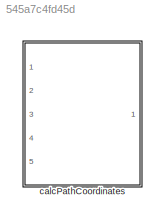
MODEL slx_545a7c4fd45d
KIND library
CONFIG AbsTol = auto
CONFIG EnableMultiTasking = off
CONFIG FixedStep = auto
CONFIG MaxStep = auto
CONFIG MinStep = auto
CONFIG RelTol = 1e-3
CONFIG SampleTimeConstraint = Unconstrained
CONFIG SolverName = VariableStepAuto
CONFIG StartTime = 0.0
CONFIG StopTime = 10.0
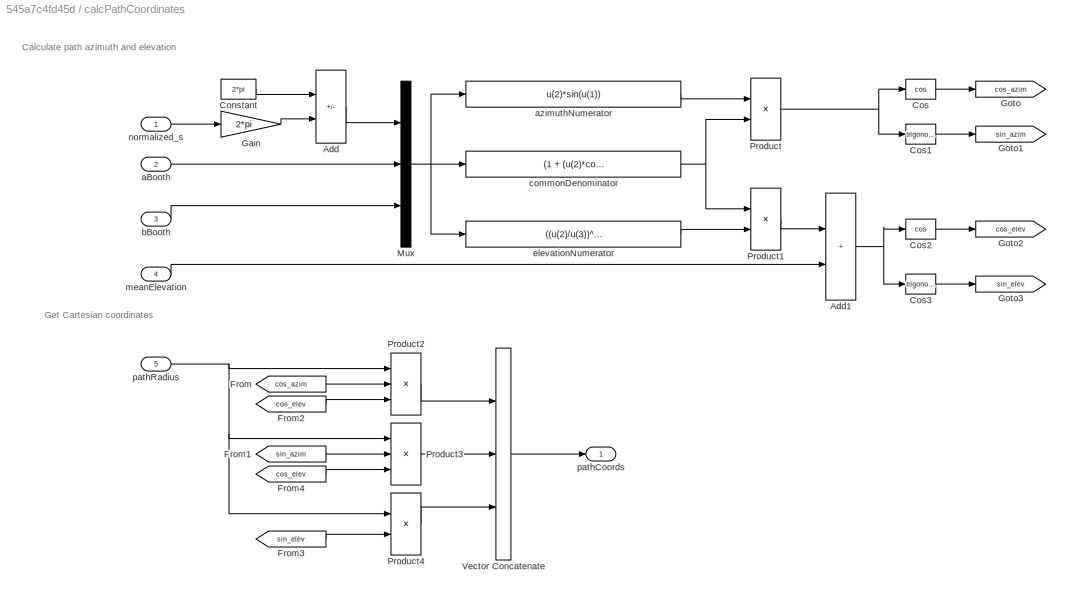
BLOCK [SubSystem] calcPathCoordinates
  Ports = [5, 1]
  RequestExecContextInheritance = off
BLOCK [Sum] calcPathCoordinates/Add
  IconShape = rectangular
  Inputs = +-
  Ports = [2, 1]
BLOCK [Sum] calcPathCoordinates/Add1
  IconShape = rectangular
  Ports = [2, 1]
BLOCK [Constant] calcPathCoordinates/Constant
  Value = 2*pi
BLOCK [Trigonometry] calcPathCoordinates/Cos
  Operator = cos
  Ports = [1, 1]
BLOCK [Trigonometry] calcPathCoordinates/Cos1
  Ports = [1, 1]
BLOCK [Trigonometry] calcPathCoordinates/Cos2
  Operator = cos
  Ports = [1, 1]
BLOCK [Trigonometry] calcPathCoordinates/Cos3
  Ports = [1, 1]
BLOCK [From] calcPathCoordinates/From
  GotoTag = cos_azim
BLOCK [From] calcPathCoordinates/From1
  GotoTag = sin_azim
BLOCK [From] calcPathCoordinates/From2
  GotoTag = cos_elev
BLOCK [From] calcPathCoordinates/From3
  GotoTag = sin_elev
BLOCK [From] calcPathCoordinates/From4
  GotoTag = cos_elev
BLOCK [Gain] calcPathCoordinates/Gain
  Gain = 2*pi
BLOCK [Goto] calcPathCoordinates/Goto
  GotoTag = cos_azim
BLOCK [Goto] calcPathCoordinates/Goto1
  GotoTag = sin_azim
BLOCK [Goto] calcPathCoordinates/Goto2
  GotoTag = cos_elev
BLOCK [Goto] calcPathCoordinates/Goto3
  GotoTag = sin_elev
BLOCK [Mux] calcPathCoordinates/Mux
  DisplayOption = bar
  Inputs = 3
  Ports = [3, 1]
BLOCK [Product] calcPathCoordinates/Product
  Inputs = */
  Ports = [2, 1]
BLOCK [Product] calcPathCoordinates/Product1
  Inputs = /*
  Ports = [2, 1]
BLOCK [Product] calcPathCoordinates/Product2
  Inputs = 3
  Ports = [3, 1]
BLOCK [Product] calcPathCoordinates/Product3
  Inputs = 3
  Ports = [3, 1]
BLOCK [Product] calcPathCoordinates/Product4
  Ports = [2, 1]
BLOCK [Concatenate] calcPathCoordinates/Vector Concatenate
  NumInputs = 3
  Ports = [3, 1]
BLOCK [Inport] calcPathCoordinates/aBooth
  Port = 2
BLOCK [Fcn] calcPathCoordinates/azimuthNumerator
  Expr = u(2)*sin(u(1))
BLOCK [Inport] calcPathCoordinates/bBooth
  Port = 3
BLOCK [Fcn] calcPathCoordinates/commonDenominator
  Expr = (1 + (u(2)*cos(u(1))/u(3))^2)
BLOCK [Fcn] calcPathCoordinates/elevationNumerator
  Expr = ((u(2)/u(3))^2)*sin(u(1))*cos(u(1))
BLOCK [Inport] calcPathCoordinates/meanElevation
  Port = 4
BLOCK [Inport] calcPathCoordinates/normalized_s
BLOCK [Outport] calcPathCoordinates/pathCoords
BLOCK [Inport] calcPathCoordinates/pathRadius
  Port = 5
ANNOTATION calcPathCoordinates: Calculate path azimuth and elevation
ANNOTATION calcPathCoordinates: Get Cartesian coordinates
NET calcPathCoordinates/Add1:1 -> calcPathCoordinates/Cos2:1, calcPathCoordinates/Cos3:1
LINE calcPathCoordinates/Add:1 -> calcPathCoordinates/Mux:1
LINE calcPathCoordinates/Constant:1 -> calcPathCoordinates/Add:1
LINE calcPathCoordinates/Cos1:1 -> calcPathCoordinates/Goto1:1
LINE calcPathCoordinates/Cos2:1 -> calcPathCoordinates/Goto2:1
LINE calcPathCoordinates/Cos3:1 -> calcPathCoordinates/Goto3:1
LINE calcPathCoordinates/Cos:1 -> calcPathCoordinates/Goto:1
LINE calcPathCoordinates/From1:1 -> calcPathCoordinates/Product3:2
LINE calcPathCoordinates/From2:1 -> calcPathCoordinates/Product2:3
LINE calcPathCoordinates/From3:1 -> calcPathCoordinates/Product4:2
LINE calcPathCoordinates/From4:1 -> calcPathCoordinates/Product3:3
LINE calcPathCoordinates/From:1 -> calcPathCoordinates/Product2:2
LINE calcPathCoordinates/Gain:1 -> calcPathCoordinates/Add:2
NET calcPathCoordinates/Mux:1 -> calcPathCoordinates/azimuthNumerator:1, calcPathCoordinates/commonDenominator:1, calcPathCoordinates/elevationNumerator:1
LINE calcPathCoordinates/Product1:1 -> calcPathCoordinates/Add1:1
LINE calcPathCoordinates/Product2:1 -> calcPathCoordinates/Vector Concatenate:1
LINE calcPathCoordinates/Product3:1 -> calcPathCoordinates/Vector Concatenate:2
LINE calcPathCoordinates/Product4:1 -> calcPathCoordinates/Vector Concatenate:3
NET calcPathCoordinates/Product:1 -> calcPathCoordinates/Cos1:1, calcPathCoordinates/Cos:1
LINE calcPathCoordinates/Vector Concatenate:1 -> calcPathCoordinates/pathCoords:1
LINE calcPathCoordinates/aBooth:1 -> calcPathCoordinates/Mux:2
LINE calcPathCoordinates/azimuthNumerator:1 -> calcPathCoordinates/Product:1
LINE calcPathCoordinates/bBooth:1 -> calcPathCoordinates/Mux:3
NET calcPathCoordinates/commonDenominator:1 -> calcPathCoordinates/Product1:1, calcPathCoordinates/Product:2
LINE calcPathCoordinates/elevationNumerator:1 -> calcPathCoordinates/Product1:2
LINE calcPathCoordinates/meanElevation:1 -> calcPathCoordinates/Add1:2
LINE calcPathCoordinates/normalized_s:1 -> calcPathCoordinates/Gain:1
NET calcPathCoordinates/pathRadius:1 -> calcPathCoordinates/Product2:1, calcPathCoordinates/Product3:1, calcPathCoordinates/Product4:1
note: NET lines group one-source signal fan-out (src -> all destinations, sorted); 1:1 wires keep LINE
